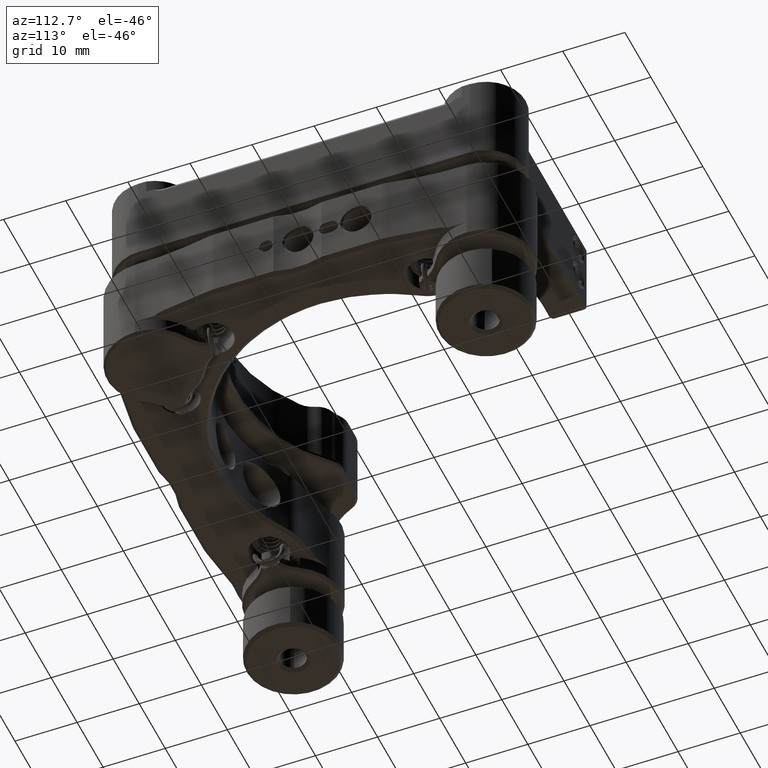
[diagram: clean part render]
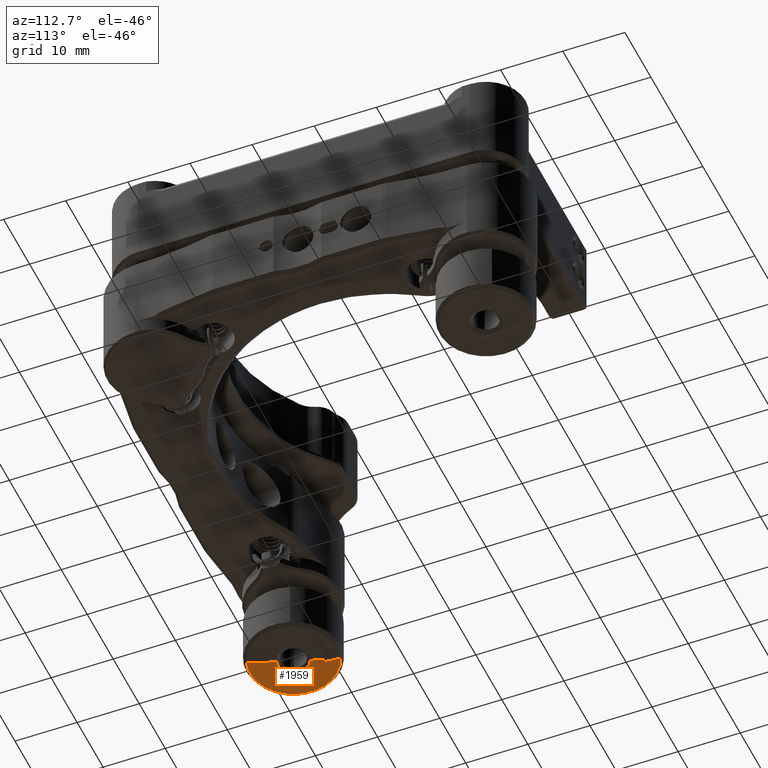
[diagram: same view with one face highlighted and labeled with its STEP entity id]
A machine part, auxiliary view. The second image highlights one B-rep face of the part: STEP entity #1959.
In plain terms, the highlighted planar face has unit normal (0, 0, 1).
Its self-contained STEP definition (entity closure, byte-faithful):
#538 = PLANE ( 'NONE',  #12216 ) ;
#614 = CARTESIAN_POINT ( 'NONE',  ( 0.000000000000000000, 6.999999999999991118, 1.310372075087666953E-15 ) ) ;
#797 = DIRECTION ( 'NONE',  ( 1.000000000000000000, 0.000000000000000000, 0.000000000000000000 ) ) ;
#1072 = CIRCLE ( 'NONE', #15133, 6.999999999999991118 ) ;
#1643 = ORIENTED_EDGE ( 'NONE', *, *, #23168, .F. ) ;
#1835 = VERTEX_POINT ( 'NONE', #3351 ) ;
#1918 = EDGE_CURVE ( 'NONE', #12338, #22170, #8482, .T. ) ;
#1959 = ADVANCED_FACE ( 'NONE', ( #25204 ), #538, .F. ) ;
#2166 = CARTESIAN_POINT ( 'NONE',  ( 0.000000000000000000, 4.886748387684781925, 0.1153764474052281636 ) ) ;
#2698 = EDGE_CURVE ( 'NONE', #22170, #27922, #27251, .T. ) ;
#3049 = AXIS2_PLACEMENT_3D ( 'NONE', #17870, #17723, #25067 ) ;
#3132 = CARTESIAN_POINT ( 'NONE',  ( 0.000000000000000000, 0.000000000000000000, 0.000000000000000000 ) ) ;
#3351 = CARTESIAN_POINT ( 'NONE',  ( 0.000000000000000000, 8.878689293818304158E-16, 6.999999999999991118 ) ) ;
#4073 = DIRECTION ( 'NONE',  ( -0.000000000000000000, 1.000000000000000000, -1.225254409782124196E-16 ) ) ;
#4854 = DIRECTION ( 'NONE',  ( -0.000000000000000000, -0.7469592730965010086, 0.6648697950239179644 ) ) ;
#5194 = DIRECTION ( 'NONE',  ( 0.000000000000000000, 0.000000000000000000, -1.000000000000000000 ) ) ;
#5766 = VECTOR ( 'NONE', #4073, 1000.000000000000000 ) ;
#5852 = ORIENTED_EDGE ( 'NONE', *, *, #16996, .F. ) ;
#6182 = DIRECTION ( 'NONE',  ( 0.000000000000000000, 0.000000000000000000, -1.000000000000000000 ) ) ;
#6261 = ORIENTED_EDGE ( 'NONE', *, *, #24561, .T. ) ;
#6834 = CARTESIAN_POINT ( 'NONE',  ( 0.000000000000000000, -2.497336235949055183, 0.1153764474052290795 ) ) ;
#7115 = LINE ( 'NONE', #19957, #5766 ) ;
#7593 = EDGE_CURVE ( 'NONE', #16765, #1835, #1072, .T. ) ;
#7820 = EDGE_CURVE ( 'NONE', #16765, #27922, #7115, .T. ) ;
#7916 = EDGE_CURVE ( 'NONE', #12338, #16515, #22965, .T. ) ;
#8352 = ORIENTED_EDGE ( 'NONE', *, *, #7916, .F. ) ;
#8436 = CARTESIAN_POINT ( 'NONE',  ( 0.000000000000000000, 0.000000000000000000, 2.500000000000009326 ) ) ;
#8482 = CIRCLE ( 'NONE', #19720, 2.500000000000009326 ) ;
#8650 = VECTOR ( 'NONE', #10291, 1000.000000000000227 ) ;
#9552 = VECTOR ( 'NONE', #4854, 1000.000000000000114 ) ;
#10017 = VECTOR ( 'NONE', #13024, 1000.000000000000000 ) ;
#10171 = DIRECTION ( 'NONE',  ( -1.000000000000000000, -0.000000000000000000, -0.000000000000000000 ) ) ;
#10291 = DIRECTION ( 'NONE',  ( -0.000000000000000000, 0.9752082065507532427, -0.2212892990545707594 ) ) ;
#10549 = DIRECTION ( 'NONE',  ( 0.000000000000000000, 0.000000000000000000, -1.000000000000000000 ) ) ;
#11264 = DIRECTION ( 'NONE',  ( 0.000000000000000000, 0.000000000000000000, -1.000000000000000000 ) ) ;
#11320 = LINE ( 'NONE', #18662, #9552 ) ;
#11753 = CARTESIAN_POINT ( 'NONE',  ( 0.000000000000000000, 2.497336235949055183, 0.1153764474052284550 ) ) ;
#12216 = AXIS2_PLACEMENT_3D ( 'NONE', #18162, #17867, #11264 ) ;
#12338 = VERTEX_POINT ( 'NONE', #11753 ) ;
#12502 = CARTESIAN_POINT ( 'NONE',  ( 0.000000000000000000, 0.000000000000000000, 0.000000000000000000 ) ) ;
#12602 = VERTEX_POINT ( 'NONE', #614 ) ;
#12797 = CARTESIAN_POINT ( 'NONE',  ( 0.000000000000000000, -6.999049097940664765, 0.1153764474052296207 ) ) ;
#13024 = DIRECTION ( 'NONE',  ( -0.000000000000000000, 1.000000000000000000, -1.225254409782124196E-16 ) ) ;
#13155 = DIRECTION ( 'NONE',  ( 1.000000000000000000, 0.000000000000000000, 0.000000000000000000 ) ) ;
#14342 = ORIENTED_EDGE ( 'NONE', *, *, #2698, .T. ) ;
#15133 = AXIS2_PLACEMENT_3D ( 'NONE', #12502, #10171, #6182 ) ;
#16189 = CIRCLE ( 'NONE', #3049, 6.999999999999991118 ) ;
#16469 = EDGE_LOOP ( 'NONE', ( #21724, #14342, #27785, #16482, #6261, #1643, #5852, #8352 ) ) ;
#16482 = ORIENTED_EDGE ( 'NONE', *, *, #7593, .T. ) ;
#16515 = VERTEX_POINT ( 'NONE', #18697 ) ;
#16765 = VERTEX_POINT ( 'NONE', #12797 ) ;
#16996 = EDGE_CURVE ( 'NONE', #16515, #19290, #11320, .T. ) ;
#17294 = CARTESIAN_POINT ( 'NONE',  ( 0.000000000000000000, 0.000000000000000000, 0.000000000000000000 ) ) ;
#17723 = DIRECTION ( 'NONE',  ( -1.000000000000000000, -0.000000000000000000, -0.000000000000000000 ) ) ;
#17867 = DIRECTION ( 'NONE',  ( 1.000000000000000000, 0.000000000000000000, 0.000000000000000000 ) ) ;
#17870 = CARTESIAN_POINT ( 'NONE',  ( 0.000000000000000000, 0.000000000000000000, 0.000000000000000000 ) ) ;
#18162 = CARTESIAN_POINT ( 'NONE',  ( 0.000000000000000000, 0.000000000000000000, 0.000000000000000000 ) ) ;
#18662 = CARTESIAN_POINT ( 'NONE',  ( 0.000000000000000000, 4.337654456849506346, 0.6041259447237550262 ) ) ;
#18697 = CARTESIAN_POINT ( 'NONE',  ( 0.000000000000000000, 4.886748387684781925, 0.1153764474052281636 ) ) ;
#19290 = VERTEX_POINT ( 'NONE', #25684 ) ;
#19720 = AXIS2_PLACEMENT_3D ( 'NONE', #17294, #13155, #10549 ) ;
#19957 = CARTESIAN_POINT ( 'NONE',  ( 0.000000000000000000, 4.886748387684781925, 0.1153764474052281636 ) ) ;
#20697 = AXIS2_PLACEMENT_3D ( 'NONE', #3132, #797, #5194 ) ;
#21724 = ORIENTED_EDGE ( 'NONE', *, *, #1918, .T. ) ;
#22170 = VERTEX_POINT ( 'NONE', #8436 ) ;
#22965 = LINE ( 'NONE', #2166, #10017 ) ;
#23168 = EDGE_CURVE ( 'NONE', #19290, #12602, #28194, .T. ) ;
#23936 = CARTESIAN_POINT ( 'NONE',  ( 0.000000000000000000, 6.999999999999991118, 1.310372075087666953E-15 ) ) ;
#24561 = EDGE_CURVE ( 'NONE', #1835, #12602, #16189, .T. ) ;
#25067 = DIRECTION ( 'NONE',  ( 0.000000000000000000, 0.000000000000000000, -1.000000000000000000 ) ) ;
#25204 = FACE_OUTER_BOUND ( 'NONE', #16469, .T. ) ;
#25684 = CARTESIAN_POINT ( 'NONE',  ( 0.000000000000000000, 4.337654456849506346, 0.6041259447237550262 ) ) ;
#27251 = CIRCLE ( 'NONE', #20697, 2.500000000000009326 ) ;
#27785 = ORIENTED_EDGE ( 'NONE', *, *, #7820, .F. ) ;
#27922 = VERTEX_POINT ( 'NONE', #6834 ) ;
#28194 = LINE ( 'NONE', #23936, #8650 ) ;